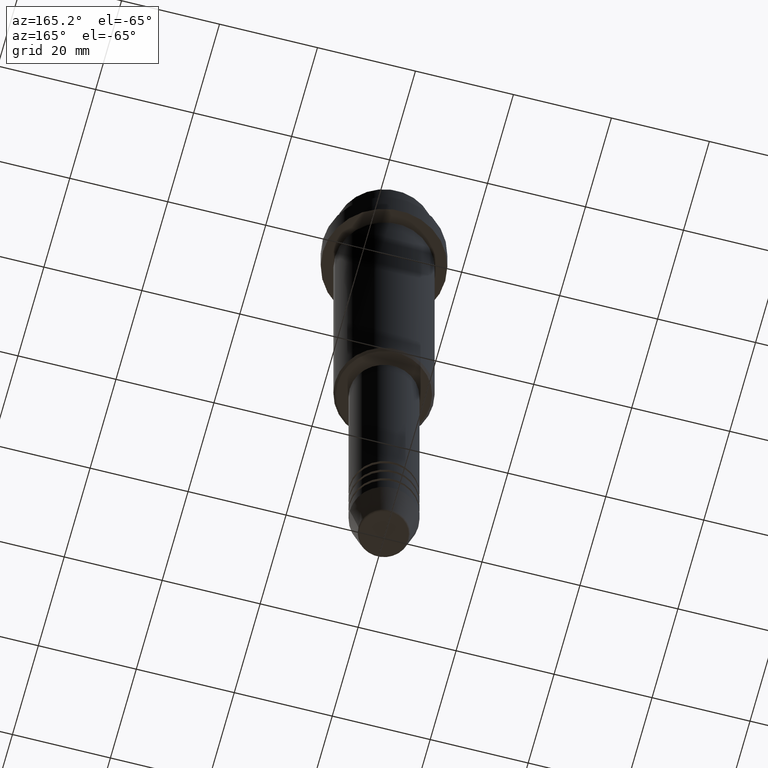
[diagram: clean part render]
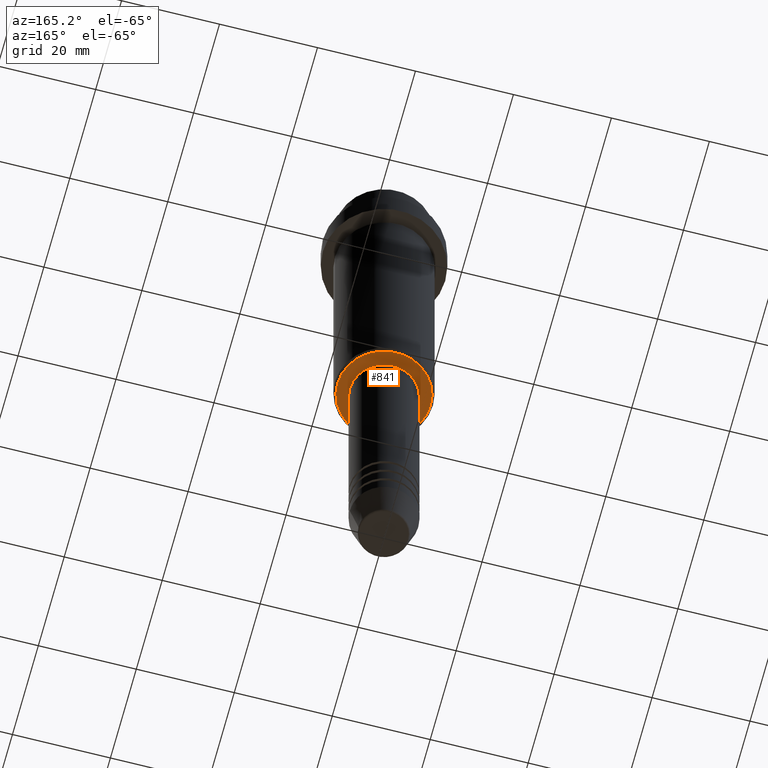
[diagram: same view with one face highlighted and labeled with its STEP entity id]
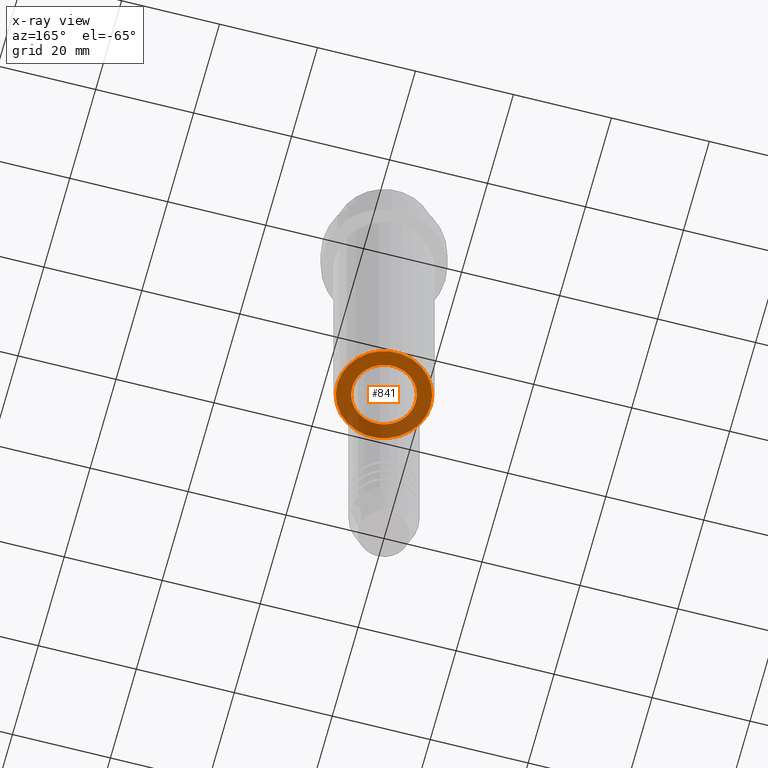
[diagram: x-ray of the same camera — body ghosted, the highlighted face saturated]
A machine part, auxiliary view. The second image highlights one B-rep face of the part: STEP entity #841.
The next image is the same camera in x-ray: the body ghosted, the highlighted face saturated — about 31% of this face is hidden behind the body in this view.
In plain terms, the highlighted planar face has unit normal (0, 0, -1).
Its self-contained STEP definition (entity closure, byte-faithful):
#19 = DIRECTION ( 'NONE',  ( 0.000000000000000000, 0.000000000000000000, -1.000000000000000000 ) ) ;
#49 = ORIENTED_EDGE ( 'NONE', *, *, #749, .T. ) ;
#104 = AXIS2_PLACEMENT_3D ( 'NONE', #1147, #1336, #152 ) ;
#124 = CIRCLE ( 'NONE', #1338, 9.499999999999980460 ) ;
#135 = DIRECTION ( 'NONE',  ( -1.000000000000000000, 0.000000000000000000, 0.000000000000000000 ) ) ;
#152 = DIRECTION ( 'NONE',  ( 1.000000000000000000, 0.000000000000000000, 0.000000000000000000 ) ) ;
#165 = CARTESIAN_POINT ( 'NONE',  ( -9.499999999999980460, 1.194030629168668089E-15, -75.00000000000001421 ) ) ;
#184 = VERTEX_POINT ( 'NONE', #1305 ) ;
#289 = CARTESIAN_POINT ( 'NONE',  ( 0.000000000000000000, 0.000000000000000000, -75.00000000000001421 ) ) ;
#330 = CARTESIAN_POINT ( 'NONE',  ( 0.000000000000000000, 0.000000000000000000, -75.00000000000001421 ) ) ;
#345 = DIRECTION ( 'NONE',  ( -0.000000000000000000, -0.000000000000000000, 1.000000000000000000 ) ) ;
#358 = VERTEX_POINT ( 'NONE', #960 ) ;
#416 = EDGE_LOOP ( 'NONE', ( #1301, #713 ) ) ;
#528 = DIRECTION ( 'NONE',  ( -1.000000000000000000, 0.000000000000000000, -0.000000000000000000 ) ) ;
#623 = EDGE_CURVE ( 'NONE', #1169, #1112, #869, .T. ) ;
#642 = DIRECTION ( 'NONE',  ( 0.000000000000000000, 0.000000000000000000, -1.000000000000000000 ) ) ;
#650 = EDGE_CURVE ( 'NONE', #184, #358, #1052, .T. ) ;
#679 = AXIS2_PLACEMENT_3D ( 'NONE', #1079, #642, #528 ) ;
#691 = CARTESIAN_POINT ( 'NONE',  ( 0.000000000000000000, 0.000000000000000000, -75.00000000000001421 ) ) ;
#713 = ORIENTED_EDGE ( 'NONE', *, *, #1080, .T. ) ;
#738 = FACE_BOUND ( 'NONE', #1107, .T. ) ;
#749 = EDGE_CURVE ( 'NONE', #358, #184, #1033, .T. ) ;
#841 = ADVANCED_FACE ( 'NONE', ( #1184, #738 ), #954, .T. ) ;
#869 = CIRCLE ( 'NONE', #1368, 9.499999999999980460 ) ;
#954 = PLANE ( 'NONE',  #679 ) ;
#960 = CARTESIAN_POINT ( 'NONE',  ( 6.499999999999994671, 0.000000000000000000, -75.00000000000001421 ) ) ;
#1013 = AXIS2_PLACEMENT_3D ( 'NONE', #691, #345, #1381 ) ;
#1019 = DIRECTION ( 'NONE',  ( 0.000000000000000000, 0.000000000000000000, -1.000000000000000000 ) ) ;
#1020 = DIRECTION ( 'NONE',  ( -1.000000000000000000, 0.000000000000000000, 0.000000000000000000 ) ) ;
#1033 = CIRCLE ( 'NONE', #1013, 6.499999999999994671 ) ;
#1049 = CARTESIAN_POINT ( 'NONE',  ( 9.499999999999980460, 0.000000000000000000, -75.00000000000001421 ) ) ;
#1052 = CIRCLE ( 'NONE', #104, 6.499999999999994671 ) ;
#1079 = CARTESIAN_POINT ( 'NONE',  ( 0.000000000000000000, 10.00000000000000000, -75.00000000000001421 ) ) ;
#1080 = EDGE_CURVE ( 'NONE', #1112, #1169, #124, .T. ) ;
#1107 = EDGE_LOOP ( 'NONE', ( #49, #1183 ) ) ;
#1112 = VERTEX_POINT ( 'NONE', #165 ) ;
#1147 = CARTESIAN_POINT ( 'NONE',  ( 0.000000000000000000, 0.000000000000000000, -75.00000000000001421 ) ) ;
#1169 = VERTEX_POINT ( 'NONE', #1049 ) ;
#1183 = ORIENTED_EDGE ( 'NONE', *, *, #650, .T. ) ;
#1184 = FACE_OUTER_BOUND ( 'NONE', #416, .T. ) ;
#1301 = ORIENTED_EDGE ( 'NONE', *, *, #623, .T. ) ;
#1305 = CARTESIAN_POINT ( 'NONE',  ( -6.499999999999994671, 7.960204194457788574E-16, -75.00000000000001421 ) ) ;
#1336 = DIRECTION ( 'NONE',  ( -0.000000000000000000, -0.000000000000000000, 1.000000000000000000 ) ) ;
#1338 = AXIS2_PLACEMENT_3D ( 'NONE', #330, #1019, #135 ) ;
#1368 = AXIS2_PLACEMENT_3D ( 'NONE', #289, #19, #1020 ) ;
#1381 = DIRECTION ( 'NONE',  ( 1.000000000000000000, 0.000000000000000000, 0.000000000000000000 ) ) ;